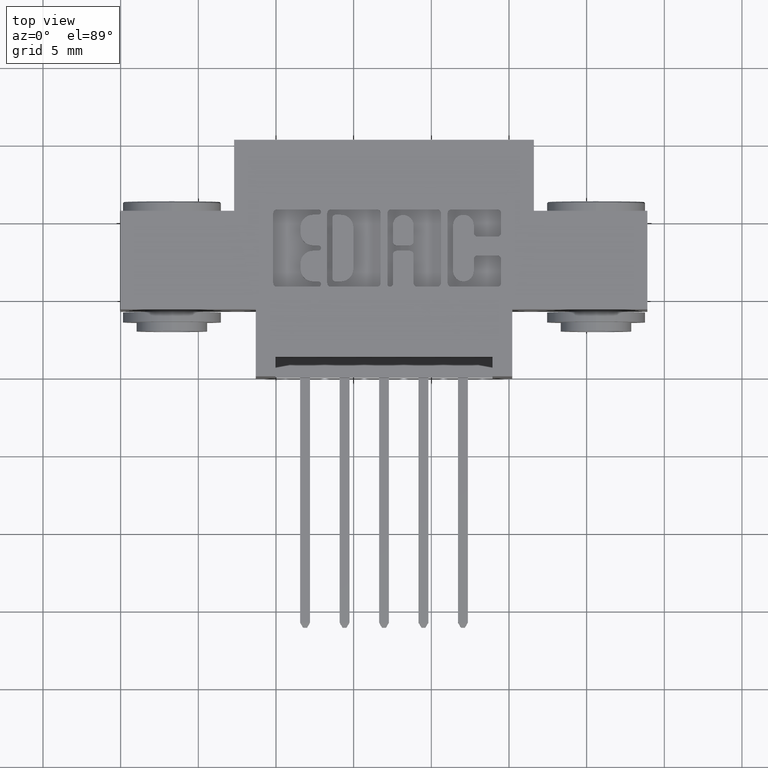
[diagram: clean part render]
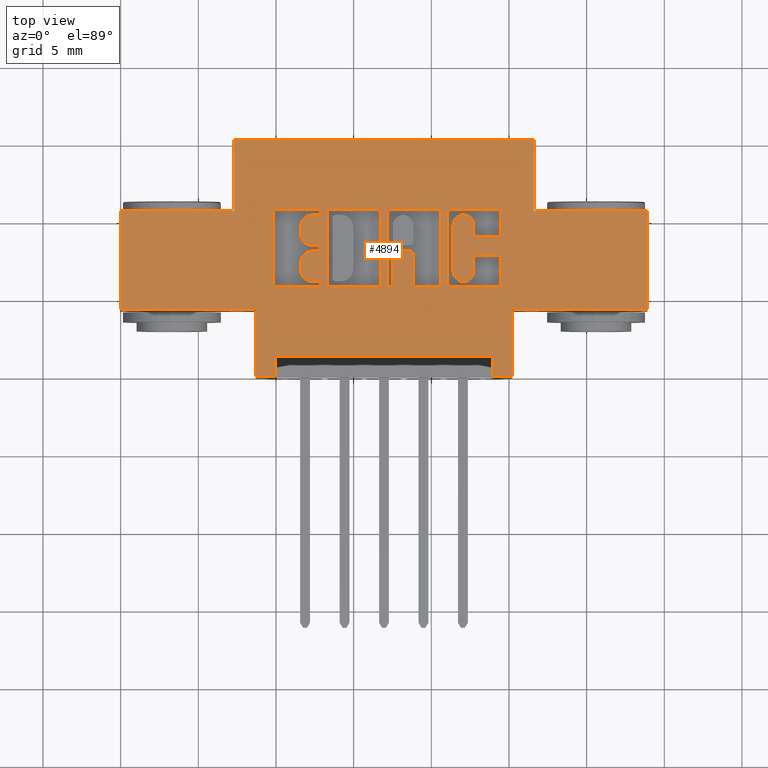
[diagram: same view with one face highlighted and labeled with its STEP entity id]
A machine part, top view. The second image highlights one B-rep face of the part: STEP entity #4894.
In plain terms, the highlighted planar face has unit normal (0, 0, -1).
Its self-contained STEP definition (entity closure, byte-faithful):
#12 = CARTESIAN_POINT ( 'NONE',  ( 0.7423444853039845600, 0.2366589681657872400, 0.0000000000000000000 ) ) ;
#20 = LINE ( 'NONE', #8558, #9373 ) ;
#39 = VECTOR ( 'NONE', #1196, 39.37007874015748100 ) ;
#54 = DIRECTION ( 'NONE',  ( 1.000000000000000000, 0.0000000000000000000, 0.0000000000000000000 ) ) ;
#78 = VECTOR ( 'NONE', #6626, 39.37007874015748100 ) ;
#84 = LINE ( 'NONE', #9011, #215 ) ;
#93 = CARTESIAN_POINT ( 'NONE',  ( 0.5075045756779733600, 0.3250000000000197700, 0.0000000000000000000 ) ) ;
#122 = LINE ( 'NONE', #5308, #9248 ) ;
#138 = CARTESIAN_POINT ( 'NONE',  ( 0.9641786319099718800, 0.4133410318341942400, 0.0000000000000000000 ) ) ;
#141 = EDGE_CURVE ( 'NONE', #4767, #5521, #4703, .T. ) ;
#155 = ORIENTED_EDGE ( 'NONE', *, *, #6849, .F. ) ;
#177 = ORIENTED_EDGE ( 'NONE', *, *, #8965, .T. ) ;
#193 = DIRECTION ( 'NONE',  ( -0.0000000000000000000, 0.0000000000000000000, 1.000000000000000000 ) ) ;
#215 = VECTOR ( 'NONE', #7019, 39.37007874015748100 ) ;
#226 = VERTEX_POINT ( 'NONE', #2705 ) ;
#261 = DIRECTION ( 'NONE',  ( 1.000000000000000000, 0.0000000000000000000, 0.0000000000000000000 ) ) ;
#264 = ORIENTED_EDGE ( 'NONE', *, *, #3347, .T. ) ;
#268 = EDGE_CURVE ( 'NONE', #556, #7973, #5226, .T. ) ;
#282 = VERTEX_POINT ( 'NONE', #6229 ) ;
#284 = ORIENTED_EDGE ( 'NONE', *, *, #268, .F. ) ;
#299 = DIRECTION ( 'NONE',  ( 1.000000000000000000, 0.0000000000000000000, 0.0000000000000000000 ) ) ;
#310 = ORIENTED_EDGE ( 'NONE', *, *, #8374, .F. ) ;
#320 = DIRECTION ( 'NONE',  ( -1.000000000000000000, 0.0000000000000000000, 0.0000000000000000000 ) ) ;
#331 = DIRECTION ( 'NONE',  ( 1.000000000000000000, 0.0000000000000000000, 0.0000000000000000000 ) ) ;
#340 = CIRCLE ( 'NONE', #7674, 0.006870969142663527000 ) ;
#352 = ORIENTED_EDGE ( 'NONE', *, *, #8864, .F. ) ;
#376 = EDGE_CURVE ( 'NONE', #5810, #7629, #9041, .T. ) ;
#377 = DIRECTION ( 'NONE',  ( -0.0000000000000000000, 0.0000000000000000000, 1.000000000000000000 ) ) ;
#404 = DIRECTION ( 'NONE',  ( -0.0000000000000000000, -1.000000000000000000, -0.0000000000000000000 ) ) ;
#417 = CARTESIAN_POINT ( 'NONE',  ( 0.9047938271769772100, 0.3637718973050446100, 0.0000000000000000000 ) ) ;
#419 = CARTESIAN_POINT ( 'NONE',  ( 0.5006336065353511600, 0.4162857328953856700, 0.0000000000000000000 ) ) ;
#421 = CARTESIAN_POINT ( 'NONE',  ( 0.7521601555077854800, 0.2268432979619840200, 0.0000000000000000000 ) ) ;
#441 = CARTESIAN_POINT ( 'NONE',  ( 0.0000000000000000000, 0.4231567020380504500, 0.0000000000000000000 ) ) ;
#463 = EDGE_CURVE ( 'NONE', #4244, #6948, #4778, .T. ) ;
#468 = VECTOR ( 'NONE', #6067, 39.37007874015748100 ) ;
#497 = VERTEX_POINT ( 'NONE', #6146 ) ;
#500 = DIRECTION ( 'NONE',  ( -1.000000000000000000, 0.0000000000000000000, 0.0000000000000000000 ) ) ;
#505 = LINE ( 'NONE', #1623, #3415 ) ;
#509 = VERTEX_POINT ( 'NONE', #1102 ) ;
#517 = CARTESIAN_POINT ( 'NONE',  ( 0.4871370600050838300, 0.3318709691426832700, 0.0000000000000000000 ) ) ;
#523 = EDGE_CURVE ( 'NONE', #2761, #732, #2120, .T. ) ;
#525 = ORIENTED_EDGE ( 'NONE', *, *, #376, .F. ) ;
#556 = VERTEX_POINT ( 'NONE', #1843 ) ;
#576 = VECTOR ( 'NONE', #3508, 39.37007874015748100 ) ;
#590 = VERTEX_POINT ( 'NONE', #1395 ) ;
#608 = DIRECTION ( 'NONE',  ( 1.000000000000000000, 0.0000000000000000000, 0.0000000000000000000 ) ) ;
#611 = ORIENTED_EDGE ( 'NONE', *, *, #3364, .F. ) ;
#623 = EDGE_CURVE ( 'NONE', #732, #3067, #4084, .T. ) ;
#625 = ORIENTED_EDGE ( 'NONE', *, *, #7071, .T. ) ;
#626 = CARTESIAN_POINT ( 'NONE',  ( 0.8115449602408065800, 0.2366589681657802800, 0.0000000000000000000 ) ) ;
#629 = CARTESIAN_POINT ( 'NONE',  ( 0.8424643213828182400, 0.3831578459575290000, 0.0000000000000000000 ) ) ;
#633 = ORIENTED_EDGE ( 'NONE', *, *, #5729, .T. ) ;
#639 = LINE ( 'NONE', #1100, #5940 ) ;
#645 = VERTEX_POINT ( 'NONE', #93 ) ;
#688 = ORIENTED_EDGE ( 'NONE', *, *, #6743, .F. ) ;
#690 = LINE ( 'NONE', #5330, #468 ) ;
#694 = AXIS2_PLACEMENT_3D ( 'NONE', #7670, #4847, #331 ) ;
#709 = CARTESIAN_POINT ( 'NONE',  ( 0.3924999999999996800, 0.05000000000000000300, 0.0000000000000000000 ) ) ;
#711 = DIRECTION ( 'NONE',  ( -0.0000000000000000000, 0.0000000000000000000, 1.000000000000000000 ) ) ;
#713 = AXIS2_PLACEMENT_3D ( 'NONE', #7745, #8539, #4809 ) ;
#726 = CARTESIAN_POINT ( 'NONE',  ( -0.0000000000000000000, 0.4094147637527351100, 0.0000000000000000000 ) ) ;
#732 = VERTEX_POINT ( 'NONE', #4512 ) ;
#751 = DIRECTION ( 'NONE',  ( -0.0000000000000000000, 0.0000000000000000000, 1.000000000000000000 ) ) ;
#760 = LINE ( 'NONE', #4267, #6416 ) ;
#763 = ORIENTED_EDGE ( 'NONE', *, *, #5399, .T. ) ;
#814 = CARTESIAN_POINT ( 'NONE',  ( 0.5332707099629758800, 0.2366589681657893500, 0.0000000000000000000 ) ) ;
#817 = ORIENTED_EDGE ( 'NONE', *, *, #884, .F. ) ;
#839 = DIRECTION ( 'NONE',  ( -1.000000000000000000, -0.0000000000000000000, -0.0000000000000000000 ) ) ;
#884 = EDGE_CURVE ( 'NONE', #6684, #1859, #2700, .T. ) ;
#893 = ORIENTED_EDGE ( 'NONE', *, *, #6922, .T. ) ;
#900 = EDGE_CURVE ( 'NONE', #8360, #4924, #1426, .T. ) ;
#911 = EDGE_CURVE ( 'NONE', #4767, #4860, #1538, .T. ) ;
#917 = DIRECTION ( 'NONE',  ( 0.0000000000000000000, -1.000000000000000000, 0.0000000000000000000 ) ) ;
#924 = VERTEX_POINT ( 'NONE', #626 ) ;
#938 = VERTEX_POINT ( 'NONE', #3798 ) ;
#943 = ORIENTED_EDGE ( 'NONE', *, *, #4980, .F. ) ;
#972 = CARTESIAN_POINT ( 'NONE',  ( 1.047500000000000300, 0.4199999999999999800, 0.0000000000000000000 ) ) ;
#1012 = CARTESIAN_POINT ( 'NONE',  ( 0.7325288151001876400, 0.3083133606535521900, 0.0000000000000000000 ) ) ;
#1016 = ORIENTED_EDGE ( 'NONE', *, *, #463, .T. ) ;
#1034 = AXIS2_PLACEMENT_3D ( 'NONE', #8726, #1310, #1370 ) ;
#1035 = VERTEX_POINT ( 'NONE', #6644 ) ;
#1047 = VECTOR ( 'NONE', #1980, 39.37007874015748100 ) ;
#1051 = ORIENTED_EDGE ( 'NONE', *, *, #9145, .F. ) ;
#1074 = ORIENTED_EDGE ( 'NONE', *, *, #1580, .F. ) ;
#1087 = ORIENTED_EDGE ( 'NONE', *, *, #7208, .F. ) ;
#1100 = CARTESIAN_POINT ( 'NONE',  ( -0.0000000000000000000, 0.3539562271012330300, 0.0000000000000000000 ) ) ;
#1102 = CARTESIAN_POINT ( 'NONE',  ( 0.5006336064153886800, 0.3181290308573562200, 0.0000000000000000000 ) ) ;
#1116 = CARTESIAN_POINT ( 'NONE',  ( 0.8687212391779985900, 0.2668421540424524300, 0.0000000000000000000 ) ) ;
#1154 = DIRECTION ( 'NONE',  ( -0.0000000000000000000, 0.0000000000000000000, 1.000000000000000000 ) ) ;
#1155 = ORIENTED_EDGE ( 'NONE', *, *, #1803, .T. ) ;
#1158 = VECTOR ( 'NONE', #839, 39.37007874015748100 ) ;
#1166 = CARTESIAN_POINT ( 'NONE',  ( 0.5006336065353511600, 0.4162857328953856700, 0.0000000000000000000 ) ) ;
#1196 = DIRECTION ( 'NONE',  ( -1.000000000000000000, -1.189163988687022500E-013, 0.0000000000000000000 ) ) ;
#1212 = AXIS2_PLACEMENT_3D ( 'NONE', #4002, #377, #9166 ) ;
#1237 = CARTESIAN_POINT ( 'NONE',  ( 0.6996463199174500800, 0.3083133606535449800, 0.0000000000000000000 ) ) ;
#1282 = LINE ( 'NONE', #4449, #8074 ) ;
#1305 = CARTESIAN_POINT ( 'NONE',  ( 0.5006336065353354000, 0.2337142671046473500, 0.0000000000000000000 ) ) ;
#1310 = DIRECTION ( 'NONE',  ( 0.0000000000000000000, 0.0000000000000000000, -1.000000000000000000 ) ) ;
#1327 = EDGE_CURVE ( 'NONE', #9287, #8672, #8215, .T. ) ;
#1331 = VERTEX_POINT ( 'NONE', #5681 ) ;
#1333 = VERTEX_POINT ( 'NONE', #5547 ) ;
#1336 = DIRECTION ( 'NONE',  ( 1.000000000000000000, 0.0000000000000000000, 0.0000000000000000000 ) ) ;
#1340 = VERTEX_POINT ( 'NONE', #8543 ) ;
#1347 = VECTOR ( 'NONE', #2300, 39.37007874015748100 ) ;
#1366 = DIRECTION ( 'NONE',  ( -0.0000000000000000000, 0.0000000000000000000, 1.000000000000000000 ) ) ;
#1370 = DIRECTION ( 'NONE',  ( -1.000000000000000000, 0.0000000000000000000, -0.0000000000000000000 ) ) ;
#1376 = CARTESIAN_POINT ( 'NONE',  ( 0.3865264404161152800, 0.4133410318342095000, 0.0000000000000000000 ) ) ;
#1395 = CARTESIAN_POINT ( 'NONE',  ( 0.3424999999999999700, 0.1699999999999999800, 0.0000000000000000000 ) ) ;
#1403 = DIRECTION ( 'NONE',  ( 1.000000000000000000, 0.0000000000000000000, 0.0000000000000000000 ) ) ;
#1404 = EDGE_CURVE ( 'NONE', #509, #645, #6240, .T. ) ;
#1411 = VERTEX_POINT ( 'NONE', #517 ) ;
#1415 = AXIS2_PLACEMENT_3D ( 'NONE', #7719, #7679, #4665 ) ;
#1423 = EDGE_CURVE ( 'NONE', #3574, #5810, #7284, .T. ) ;
#1426 = LINE ( 'NONE', #4921, #6364 ) ;
#1432 = CARTESIAN_POINT ( 'NONE',  ( 0.8287223830974583800, 0.0000000000000000000, 0.0000000000000000000 ) ) ;
#1469 = VERTEX_POINT ( 'NONE', #4288 ) ;
#1527 = CARTESIAN_POINT ( 'NONE',  ( -0.0000000000000000000, 0.2268432979619826000, 0.0000000000000000000 ) ) ;
#1536 = EDGE_CURVE ( 'NONE', #4677, #2761, #5779, .T. ) ;
#1538 = CIRCLE ( 'NONE', #5254, 0.03141014465218178200 ) ;
#1551 = CARTESIAN_POINT ( 'NONE',  ( 0.6859043816321273000, 0.4231567020380060400, 0.0000000000000000000 ) ) ;
#1557 = DIRECTION ( 'NONE',  ( -0.0000000000000000000, 0.0000000000000000000, 1.000000000000000000 ) ) ;
#1574 = VECTOR ( 'NONE', #1687, 39.37007874015748100 ) ;
#1580 = EDGE_CURVE ( 'NONE', #2688, #4677, #2804, .T. ) ;
#1596 = CIRCLE ( 'NONE', #8462, 0.009815670203803340800 ) ;
#1599 = VERTEX_POINT ( 'NONE', #5791 ) ;
#1621 = CIRCLE ( 'NONE', #2569, 0.009815670203806891800 ) ;
#1623 = CARTESIAN_POINT ( 'NONE',  ( 0.0000000000000000000, 0.4231567020380321300, 0.0000000000000000000 ) ) ;
#1635 = DIRECTION ( 'NONE',  ( -0.0000000000000000000, -1.000000000000000000, -0.0000000000000000000 ) ) ;
#1642 = EDGE_CURVE ( 'NONE', #3487, #5929, #3262, .T. ) ;
#1668 = CARTESIAN_POINT ( 'NONE',  ( 0.6490956183678959800, 0.4231567020380504500, 0.0000000000000000000 ) ) ;
#1673 = ORIENTED_EDGE ( 'NONE', *, *, #7755, .T. ) ;
#1684 = CARTESIAN_POINT ( 'NONE',  ( 0.0000000000000000000, 0.5999999999999999800, 0.0000000000000000000 ) ) ;
#1687 = DIRECTION ( 'NONE',  ( -1.000000000000000000, -3.530861605407645300E-014, 0.0000000000000000000 ) ) ;
#1707 = VECTOR ( 'NONE', #3382, 39.37007874015748100 ) ;
#1711 = CARTESIAN_POINT ( 'NONE',  ( 1.334999999999999700, 0.1699999999999999800, 1.634903476861716200E-016 ) ) ;
#1717 = CIRCLE ( 'NONE', #4361, 0.006870969142648501700 ) ;
#1738 = CARTESIAN_POINT ( 'NONE',  ( 0.8385380533012651800, 0.2366589681657893500, 0.0000000000000000000 ) ) ;
#1742 = CIRCLE ( 'NONE', #6571, 0.009815670203787086500 ) ;
#1744 = ORIENTED_EDGE ( 'NONE', *, *, #1536, .F. ) ;
#1758 = VECTOR ( 'NONE', #3300, 39.37007874015748100 ) ;
#1770 = DIRECTION ( 'NONE',  ( 1.000000000000000000, 0.0000000000000000000, 0.0000000000000000000 ) ) ;
#1803 = EDGE_CURVE ( 'NONE', #4924, #7468, #690, .T. ) ;
#1843 = CARTESIAN_POINT ( 'NONE',  ( 0.3865264404161152800, 0.2366589681657893500, 0.0000000000000000000 ) ) ;
#1844 = CARTESIAN_POINT ( 'NONE',  ( 0.9425000000000001200, 0.0000000000000000000, 0.0000000000000000000 ) ) ;
#1846 = EDGE_CURVE ( 'NONE', #2681, #1599, #8084, .T. ) ;
#1854 = CARTESIAN_POINT ( 'NONE',  ( 0.3865264404161152800, 0.0000000000000000000, 0.0000000000000000000 ) ) ;
#1855 = LINE ( 'NONE', #3599, #1158 ) ;
#1859 = VERTEX_POINT ( 'NONE', #5603 ) ;
#1885 = CARTESIAN_POINT ( 'NONE',  ( 0.9543629617061681900, 0.4231567020380504500, 0.0000000000000000000 ) ) ;
#1887 = DIRECTION ( 'NONE',  ( 1.000000000000000000, 0.0000000000000000000, 0.0000000000000000000 ) ) ;
#1892 = VERTEX_POINT ( 'NONE', #3476 ) ;
#1893 = CARTESIAN_POINT ( 'NONE',  ( 0.6490956183678618900, 0.2366589681657893500, 0.0000000000000000000 ) ) ;
#1911 = CARTESIAN_POINT ( 'NONE',  ( 0.9543629617061669700, 0.3539562271012330300, 0.0000000000000000000 ) ) ;
#1916 = ORIENTED_EDGE ( 'NONE', *, *, #4005, .F. ) ;
#1946 = DIRECTION ( 'NONE',  ( 1.000000000000000000, 0.0000000000000000000, 0.0000000000000000000 ) ) ;
#1959 = EDGE_CURVE ( 'NONE', #6138, #2454, #7268, .T. ) ;
#1960 = CIRCLE ( 'NONE', #6152, 0.006870969142648501700 ) ;
#1970 = DIRECTION ( 'NONE',  ( -0.0000000000000000000, 1.000000000000000000, -0.0000000000000000000 ) ) ;
#1980 = DIRECTION ( 'NONE',  ( 1.000000000000000000, 0.0000000000000000000, 0.0000000000000000000 ) ) ;
#1995 = VERTEX_POINT ( 'NONE', #7206 ) ;
#2007 = DIRECTION ( 'NONE',  ( 1.000000000000000000, 0.0000000000000000000, 0.0000000000000000000 ) ) ;
#2011 = CARTESIAN_POINT ( 'NONE',  ( 0.5006336065353097500, 0.3250000000000197700, 0.0000000000000000000 ) ) ;
#2018 = ORIENTED_EDGE ( 'NONE', *, *, #2670, .F. ) ;
#2025 = VERTEX_POINT ( 'NONE', #7689 ) ;
#2034 = CARTESIAN_POINT ( 'NONE',  ( 0.2874999999999999800, 0.4199999999999999800, 0.0000000000000000000 ) ) ;
#2064 = DIRECTION ( 'NONE',  ( 1.000000000000000000, 7.203446383881649800E-015, 0.0000000000000000000 ) ) ;
#2071 = ORIENTED_EDGE ( 'NONE', *, *, #141, .F. ) ;
#2110 = LINE ( 'NONE', #6651, #2707 ) ;
#2120 = CIRCLE ( 'NONE', #8107, 0.009815670203806754800 ) ;
#2129 = DIRECTION ( 'NONE',  ( 1.000000000000000000, 0.0000000000000000000, 0.0000000000000000000 ) ) ;
#2131 = VERTEX_POINT ( 'NONE', #8089 ) ;
#2134 = EDGE_CURVE ( 'NONE', #9258, #8372, #4174, .T. ) ;
#2145 = CARTESIAN_POINT ( 'NONE',  ( 0.4871370600051252400, 0.3780046191005191900, 0.0000000000000000000 ) ) ;
#2153 = CIRCLE ( 'NONE', #713, 0.03141014465217447500 ) ;
#2162 = CARTESIAN_POINT ( 'NONE',  ( 0.8287223830974583800, 0.2366589681657893500, 0.0000000000000000000 ) ) ;
#2239 = CIRCLE ( 'NONE', #6590, 0.006870969142657995000 ) ;
#2248 = EDGE_CURVE ( 'NONE', #7081, #2688, #4265, .T. ) ;
#2282 = ORIENTED_EDGE ( 'NONE', *, *, #3514, .F. ) ;
#2300 = DIRECTION ( 'NONE',  ( 0.0000000000000000000, -1.000000000000000000, 0.0000000000000000000 ) ) ;
#2313 = VERTEX_POINT ( 'NONE', #8443 ) ;
#2349 = CARTESIAN_POINT ( 'NONE',  ( 1.334999999999999700, 0.4199999999999999800, 0.0000000000000000000 ) ) ;
#2352 = EDGE_CURVE ( 'NONE', #645, #2313, #340, .T. ) ;
#2360 = VECTOR ( 'NONE', #5835, 39.37007874015748100 ) ;
#2362 = DIRECTION ( 'NONE',  ( 0.0000000000000000000, 1.000000000000000000, -0.0000000000000000000 ) ) ;
#2397 = DIRECTION ( 'NONE',  ( 0.0000000000000000000, 1.000000000000000000, -0.0000000000000000000 ) ) ;
#2400 = LINE ( 'NONE', #1854, #8526 ) ;
#2429 = CIRCLE ( 'NONE', #4547, 0.03141014465215624000 ) ;
#2451 = AXIS2_PLACEMENT_3D ( 'NONE', #2145, #8105, #6519 ) ;
#2454 = VERTEX_POINT ( 'NONE', #3225 ) ;
#2457 = CARTESIAN_POINT ( 'NONE',  ( 0.4557269153529276400, 0.2719953808994897700, 0.0000000000000000000 ) ) ;
#2497 = EDGE_CURVE ( 'NONE', #1035, #6655, #1282, .T. ) ;
#2500 = DIRECTION ( 'NONE',  ( -0.0000000000000000000, 0.0000000000000000000, 1.000000000000000000 ) ) ;
#2558 = VERTEX_POINT ( 'NONE', #3681 ) ;
#2565 = CIRCLE ( 'NONE', #1212, 0.009815670203796511200 ) ;
#2569 = AXIS2_PLACEMENT_3D ( 'NONE', #1893, #5580, #8094 ) ;
#2593 = ORIENTED_EDGE ( 'NONE', *, *, #6374, .F. ) ;
#2597 = VECTOR ( 'NONE', #2362, 39.37007874015748100 ) ;
#2598 = VECTOR ( 'NONE', #4035, 39.37007874015748100 ) ;
#2608 = DIRECTION ( 'NONE',  ( 1.000000000000000000, 0.0000000000000000000, 0.0000000000000000000 ) ) ;
#2629 = EDGE_CURVE ( 'NONE', #2454, #3487, #1621, .T. ) ;
#2636 = VERTEX_POINT ( 'NONE', #3142 ) ;
#2665 = CARTESIAN_POINT ( 'NONE',  ( 0.8949781569731788400, 0.0000000000000000000, 0.0000000000000000000 ) ) ;
#2670 = EDGE_CURVE ( 'NONE', #8138, #2131, #3236, .T. ) ;
#2681 = VERTEX_POINT ( 'NONE', #7914 ) ;
#2688 = VERTEX_POINT ( 'NONE', #3534 ) ;
#2700 = LINE ( 'NONE', #441, #1758 ) ;
#2701 = AXIS2_PLACEMENT_3D ( 'NONE', #3498, #5025, #608 ) ;
#2705 = CARTESIAN_POINT ( 'NONE',  ( 0.3963421106199378500, 0.4231567020380321300, 0.0000000000000000000 ) ) ;
#2707 = VECTOR ( 'NONE', #3707, 39.37007874015748100 ) ;
#2714 = CARTESIAN_POINT ( 'NONE',  ( 0.0000000000000000000, 0.5999999999999999800, 0.0000000000000000000 ) ) ;
#2761 = VERTEX_POINT ( 'NONE', #2162 ) ;
#2790 = EDGE_CURVE ( 'NONE', #590, #1469, #1855, .T. ) ;
#2795 = CARTESIAN_POINT ( 'NONE',  ( 0.3963421106199378500, 0.4133410318342095000, 0.0000000000000000000 ) ) ;
#2804 = CIRCLE ( 'NONE', #6942, 0.009815670203840767500 ) ;
#2806 = CARTESIAN_POINT ( 'NONE',  ( 0.8949781569731657400, 0.0000000000000000000, 0.0000000000000000000 ) ) ;
#2813 = ORIENTED_EDGE ( 'NONE', *, *, #900, .T. ) ;
#2814 = CARTESIAN_POINT ( 'NONE',  ( 0.6898306497136467200, 0.0000000000000000000, 0.0000000000000000000 ) ) ;
#2832 = EDGE_CURVE ( 'NONE', #4886, #7105, #9348, .T. ) ;
#2838 = VERTEX_POINT ( 'NONE', #5450 ) ;
#2853 = AXIS2_PLACEMENT_3D ( 'NONE', #2795, #8605, #2007 ) ;
#2922 = ORIENTED_EDGE ( 'NONE', *, *, #8754, .F. ) ;
#2924 = CARTESIAN_POINT ( 'NONE',  ( 0.9641786319099718800, 0.0000000000000000000, 0.0000000000000000000 ) ) ;
#2959 = AXIS2_PLACEMENT_3D ( 'NONE', #417, #7068, #3337 ) ;
#2961 = VERTEX_POINT ( 'NONE', #7011 ) ;
#2968 = LINE ( 'NONE', #6056, #8625 ) ;
#3005 = CARTESIAN_POINT ( 'NONE',  ( 0.6589112885716688100, 0.4133410318342095000, 0.0000000000000000000 ) ) ;
#3021 = AXIS2_PLACEMENT_3D ( 'NONE', #7607, #4683, #261 ) ;
#3024 = ORIENTED_EDGE ( 'NONE', *, *, #1642, .F. ) ;
#3028 = CARTESIAN_POINT ( 'NONE',  ( 0.4557269153529276400, 0.2867188862051999700, 0.0000000000000000000 ) ) ;
#3033 = EDGE_CURVE ( 'NONE', #2313, #1411, #4207, .T. ) ;
#3067 = VERTEX_POINT ( 'NONE', #7585 ) ;
#3120 = FACE_BOUND ( 'NONE', #6294, .T. ) ;
#3142 = CARTESIAN_POINT ( 'NONE',  ( 0.8424643213828182400, 0.2668421540424524300, 0.0000000000000000000 ) ) ;
#3148 = CARTESIAN_POINT ( 'NONE',  ( 0.5006336065353511600, 0.4094147637527351100, 0.0000000000000000000 ) ) ;
#3150 = CARTESIAN_POINT ( 'NONE',  ( -1.123269580619666900E-014, 0.3181290308573233000, 0.0000000000000000000 ) ) ;
#3196 = VERTEX_POINT ( 'NONE', #6704 ) ;
#3213 = AXIS2_PLACEMENT_3D ( 'NONE', #1305, #6436, #1336 ) ;
#3225 = CARTESIAN_POINT ( 'NONE',  ( 0.6490956183678618900, 0.2268432979619826000, 0.0000000000000000000 ) ) ;
#3236 = CIRCLE ( 'NONE', #2701, 0.006870969142662229500 ) ;
#3245 = CARTESIAN_POINT ( 'NONE',  ( 0.6589112885716688100, 0.2366589681657893500, 0.0000000000000000000 ) ) ;
#3262 = LINE ( 'NONE', #7157, #8206 ) ;
#3270 = ORIENTED_EDGE ( 'NONE', *, *, #2352, .F. ) ;
#3278 = EDGE_CURVE ( 'NONE', #497, #1469, #7314, .T. ) ;
#3291 = EDGE_CURVE ( 'NONE', #1340, #3721, #5685, .T. ) ;
#3296 = ORIENTED_EDGE ( 'NONE', *, *, #3766, .F. ) ;
#3300 = DIRECTION ( 'NONE',  ( -1.000000000000000000, 0.0000000000000000000, 0.0000000000000000000 ) ) ;
#3317 = CARTESIAN_POINT ( 'NONE',  ( 0.7423444853039845600, 0.0000000000000000000, 0.0000000000000000000 ) ) ;
#3323 = EDGE_LOOP ( 'NONE', ( #4859, #3296, #625, #6901, #3270, #4216, #4042, #4510, #2071, #6211, #4415, #8339, #2018, #6890, #284, #9545, #9406, #4462, #943, #8369, #9514 ) ) ;
#3337 = DIRECTION ( 'NONE',  ( 1.000000000000000000, 0.0000000000000000000, 0.0000000000000000000 ) ) ;
#3347 = EDGE_CURVE ( 'NONE', #5876, #1340, #8815, .T. ) ;
#3359 = CARTESIAN_POINT ( 'NONE',  ( 0.8115449602408065800, 0.4133410318342003500, 0.0000000000000000000 ) ) ;
#3362 = DIRECTION ( 'NONE',  ( 1.000000000000000000, 0.0000000000000000000, 0.0000000000000000000 ) ) ;
#3364 = EDGE_CURVE ( 'NONE', #497, #7298, #7767, .T. ) ;
#3382 = DIRECTION ( 'NONE',  ( 0.0000000000000000000, 1.000000000000000000, -0.0000000000000000000 ) ) ;
#3415 = VECTOR ( 'NONE', #6531, 39.37007874015748100 ) ;
#3450 = DIRECTION ( 'NONE',  ( -0.0000000000000000000, -1.000000000000000000, -0.0000000000000000000 ) ) ;
#3464 = CARTESIAN_POINT ( 'NONE',  ( 0.0000000000000000000, 0.4199999999999999800, 0.0000000000000000000 ) ) ;
#3473 = EDGE_CURVE ( 'NONE', #5929, #6684, #8453, .T. ) ;
#3474 = VECTOR ( 'NONE', #500, 39.37007874015748100 ) ;
#3476 = CARTESIAN_POINT ( 'NONE',  ( 0.3924999999999996800, 0.0000000000000000000, 0.0000000000000000000 ) ) ;
#3485 = EDGE_CURVE ( 'NONE', #5540, #1892, #5999, .T. ) ;
#3487 = VERTEX_POINT ( 'NONE', #3245 ) ;
#3489 = AXIS2_PLACEMENT_3D ( 'NONE', #5619, #9304, #1887 ) ;
#3498 = CARTESIAN_POINT ( 'NONE',  ( 0.5006336065353354000, 0.2337142671046473500, 0.0000000000000000000 ) ) ;
#3501 = AXIS2_PLACEMENT_3D ( 'NONE', #1237, #9389, #9330 ) ;
#3508 = DIRECTION ( 'NONE',  ( 1.000000000000000000, 0.0000000000000000000, 0.0000000000000000000 ) ) ;
#3514 = EDGE_CURVE ( 'NONE', #5984, #6948, #2565, .T. ) ;
#3534 = CARTESIAN_POINT ( 'NONE',  ( 0.8385380533012991600, 0.4231567020380504500, 0.0000000000000000000 ) ) ;
#3537 = LINE ( 'NONE', #3150, #1574 ) ;
#3574 = VERTEX_POINT ( 'NONE', #1911 ) ;
#3580 = VECTOR ( 'NONE', #5931, 39.37007874015748100 ) ;
#3599 = CARTESIAN_POINT ( 'NONE',  ( 0.0000000000000000000, 0.1699999999999999800, 0.0000000000000000000 ) ) ;
#3600 = CARTESIAN_POINT ( 'NONE',  ( 0.9543629617061528700, 0.2965345564089698100, 0.0000000000000000000 ) ) ;
#3604 = LINE ( 'NONE', #4102, #8801 ) ;
#3649 = DIRECTION ( 'NONE',  ( 0.0000000000000000000, -1.000000000000000000, 0.0000000000000000000 ) ) ;
#3669 = LINE ( 'NONE', #3317, #1707 ) ;
#3677 = ORIENTED_EDGE ( 'NONE', *, *, #4926, .F. ) ;
#3681 = CARTESIAN_POINT ( 'NONE',  ( 0.9924999999999998300, 0.1699999999999999800, 7.960204194457794200E-017 ) ) ;
#3682 = FACE_BOUND ( 'NONE', #9332, .T. ) ;
#3707 = DIRECTION ( 'NONE',  ( -1.000000000000000000, 0.0000000000000000000, 0.0000000000000000000 ) ) ;
#3721 = VERTEX_POINT ( 'NONE', #5208 ) ;
#3748 = DIRECTION ( 'NONE',  ( 1.000000000000000000, 0.0000000000000000000, 0.0000000000000000000 ) ) ;
#3752 = VERTEX_POINT ( 'NONE', #8393 ) ;
#3766 = EDGE_CURVE ( 'NONE', #1333, #1331, #122, .T. ) ;
#3770 = ORIENTED_EDGE ( 'NONE', *, *, #3278, .T. ) ;
#3774 = ORIENTED_EDGE ( 'NONE', *, *, #4315, .T. ) ;
#3791 = EDGE_CURVE ( 'NONE', #5204, #8210, #1742, .T. ) ;
#3798 = CARTESIAN_POINT ( 'NONE',  ( 0.7325288151001879700, 0.3181290308573491700, 0.0000000000000000000 ) ) ;
#3815 = CARTESIAN_POINT ( 'NONE',  ( 0.9425000000000001200, 0.05000000000000000300, 0.0000000000000000000 ) ) ;
#3831 = EDGE_CURVE ( 'NONE', #9258, #1331, #5187, .T. ) ;
#3937 = CARTESIAN_POINT ( 'NONE',  ( 0.9641786319099399100, 0.0000000000000000000, 0.0000000000000000000 ) ) ;
#3971 = VECTOR ( 'NONE', #7066, 39.37007874015748100 ) ;
#3986 = DIRECTION ( 'NONE',  ( -1.000000000000000000, 0.0000000000000000000, 0.0000000000000000000 ) ) ;
#4002 = CARTESIAN_POINT ( 'NONE',  ( 0.6859043816321273000, 0.4133410318342095000, 0.0000000000000000000 ) ) ;
#4005 = EDGE_CURVE ( 'NONE', #2025, #2961, #4969, .T. ) ;
#4030 = ORIENTED_EDGE ( 'NONE', *, *, #8448, .F. ) ;
#4032 = CARTESIAN_POINT ( 'NONE',  ( 0.9924999999999998300, 0.0000000000000000000, 0.0000000000000000000 ) ) ;
#4035 = DIRECTION ( 'NONE',  ( 0.0000000000000000000, 1.000000000000000000, -0.0000000000000000000 ) ) ;
#4042 = ORIENTED_EDGE ( 'NONE', *, *, #7829, .F. ) ;
#4063 = VECTOR ( 'NONE', #5468, 39.37007874015748100 ) ;
#4084 = LINE ( 'NONE', #1527, #7531 ) ;
#4102 = CARTESIAN_POINT ( 'NONE',  ( 0.2874999999999999800, 0.4199999999999999800, 0.0000000000000000000 ) ) ;
#4144 = DIRECTION ( 'NONE',  ( -0.0000000000000000000, 0.0000000000000000000, 1.000000000000000000 ) ) ;
#4173 = CARTESIAN_POINT ( 'NONE',  ( 1.334999999999999700, 0.1699999999999999800, 1.634903476861716200E-016 ) ) ;
#4174 = LINE ( 'NONE', #726, #5662 ) ;
#4179 = CARTESIAN_POINT ( 'NONE',  ( 0.0000000000000000000, 0.3318709691426832700, 0.0000000000000000000 ) ) ;
#4207 = LINE ( 'NONE', #4179, #4670 ) ;
#4216 = ORIENTED_EDGE ( 'NONE', *, *, #1404, .F. ) ;
#4242 = AXIS2_PLACEMENT_3D ( 'NONE', #8024, #1366, #2129 ) ;
#4244 = VERTEX_POINT ( 'NONE', #6377 ) ;
#4265 = LINE ( 'NONE', #8645, #3474 ) ;
#4267 = CARTESIAN_POINT ( 'NONE',  ( -0.0000000000000000000, 0.4231567020380060400, 0.0000000000000000000 ) ) ;
#4288 = CARTESIAN_POINT ( 'NONE',  ( 0.0000000000000000000, 0.1699999999999999800, 0.0000000000000000000 ) ) ;
#4290 = EDGE_CURVE ( 'NONE', #4886, #924, #8076, .T. ) ;
#4315 = EDGE_CURVE ( 'NONE', #282, #938, #5868, .T. ) ;
#4340 = CIRCLE ( 'NONE', #3213, 0.006870969142662229500 ) ;
#4361 = AXIS2_PLACEMENT_3D ( 'NONE', #419, #6312, #7740 ) ;
#4372 = DIRECTION ( 'NONE',  ( -0.0000000000000000000, 0.0000000000000000000, 1.000000000000000000 ) ) ;
#4381 = DIRECTION ( 'NONE',  ( 1.000000000000000000, -0.0000000000000000000, -0.0000000000000000000 ) ) ;
#4386 = VERTEX_POINT ( 'NONE', #8911 ) ;
#4394 = DIRECTION ( 'NONE',  ( -0.0000000000000000000, 0.0000000000000000000, 1.000000000000000000 ) ) ;
#4403 = VECTOR ( 'NONE', #3649, 39.37007874015748100 ) ;
#4410 = CARTESIAN_POINT ( 'NONE',  ( 0.4557269153529276400, 0.0000000000000000000, 0.0000000000000000000 ) ) ;
#4415 = ORIENTED_EDGE ( 'NONE', *, *, #9040, .F. ) ;
#4423 = LINE ( 'NONE', #8620, #39 ) ;
#4427 = EDGE_LOOP ( 'NONE', ( #893, #688, #4865, #6397, #9556, #8382, #633, #3774, #1673, #264, #5287, #4030, #1016, #2282 ) ) ;
#4438 = CARTESIAN_POINT ( 'NONE',  ( 0.3424999999999999700, 0.0000000000000000000, 0.0000000000000000000 ) ) ;
#4449 = CARTESIAN_POINT ( 'NONE',  ( 1.334999999999999700, 0.4199999999999999800, 0.0000000000000000000 ) ) ;
#4462 = ORIENTED_EDGE ( 'NONE', *, *, #8506, .F. ) ;
#4510 = ORIENTED_EDGE ( 'NONE', *, *, #4712, .T. ) ;
#4512 = CARTESIAN_POINT ( 'NONE',  ( 0.8385380533012651800, 0.2268432979619826000, 0.0000000000000000000 ) ) ;
#4545 = ORIENTED_EDGE ( 'NONE', *, *, #2629, .F. ) ;
#4547 = AXIS2_PLACEMENT_3D ( 'NONE', #6006, #751, #5910 ) ;
#4561 = EDGE_CURVE ( 'NONE', #5453, #1892, #7608, .T. ) ;
#4564 = CARTESIAN_POINT ( 'NONE',  ( 0.8949781569731788400, 0.2668421540424524300, 0.0000000000000000000 ) ) ;
#4618 = DIRECTION ( 'NONE',  ( 1.000000000000000000, 0.0000000000000000000, 0.0000000000000000000 ) ) ;
#4650 = EDGE_CURVE ( 'NONE', #4915, #2558, #6098, .T. ) ;
#4665 = DIRECTION ( 'NONE',  ( 1.000000000000000000, 0.0000000000000000000, 0.0000000000000000000 ) ) ;
#4670 = VECTOR ( 'NONE', #320, 39.37007874015748100 ) ;
#4671 = VECTOR ( 'NONE', #4618, 39.37007874015748100 ) ;
#4675 = ORIENTED_EDGE ( 'NONE', *, *, #8937, .F. ) ;
#4677 = VERTEX_POINT ( 'NONE', #5826 ) ;
#4683 = DIRECTION ( 'NONE',  ( -0.0000000000000000000, 0.0000000000000000000, 1.000000000000000000 ) ) ;
#4688 = CARTESIAN_POINT ( 'NONE',  ( 0.5006336065353097500, 0.3250000000000197700, 0.0000000000000000000 ) ) ;
#4698 = VECTOR ( 'NONE', #9302, 39.37007874015748100 ) ;
#4703 = LINE ( 'NONE', #4410, #78 ) ;
#4712 = EDGE_CURVE ( 'NONE', #8351, #5521, #2429, .T. ) ;
#4755 = ORIENTED_EDGE ( 'NONE', *, *, #3791, .F. ) ;
#4767 = VERTEX_POINT ( 'NONE', #2457 ) ;
#4778 = LINE ( 'NONE', #8220, #2597 ) ;
#4809 = DIRECTION ( 'NONE',  ( 1.000000000000000000, 0.0000000000000000000, 0.0000000000000000000 ) ) ;
#4822 = CARTESIAN_POINT ( 'NONE',  ( 1.047500000000000300, 0.5999999999999999800, 0.0000000000000000000 ) ) ;
#4842 = DIRECTION ( 'NONE',  ( -0.0000000000000000000, 0.0000000000000000000, 1.000000000000000000 ) ) ;
#4844 = DIRECTION ( 'NONE',  ( 0.0000000000000000000, -1.000000000000000000, 0.0000000000000000000 ) ) ;
#4847 = DIRECTION ( 'NONE',  ( -0.0000000000000000000, 0.0000000000000000000, 1.000000000000000000 ) ) ;
#4848 = VECTOR ( 'NONE', #9392, 39.37007874015748100 ) ;
#4859 = ORIENTED_EDGE ( 'NONE', *, *, #3831, .T. ) ;
#4860 = VERTEX_POINT ( 'NONE', #7502 ) ;
#4865 = ORIENTED_EDGE ( 'NONE', *, *, #5709, .T. ) ;
#4886 = VERTEX_POINT ( 'NONE', #6469 ) ;
#4894 = ADVANCED_FACE ( 'NONE', ( #3120, #6088, #5855, #3682, #8764 ), #9365, .F. ) ;
#4915 = VERTEX_POINT ( 'NONE', #1711 ) ;
#4921 = CARTESIAN_POINT ( 'NONE',  ( 0.9425000000000001200, 0.05000000000000000300, 0.0000000000000000000 ) ) ;
#4924 = VERTEX_POINT ( 'NONE', #1844 ) ;
#4926 = EDGE_CURVE ( 'NONE', #1859, #5820, #7838, .T. ) ;
#4946 = ORIENTED_EDGE ( 'NONE', *, *, #6272, .F. ) ;
#4969 = CIRCLE ( 'NONE', #2959, 0.009815670203811535700 ) ;
#4980 = EDGE_CURVE ( 'NONE', #1995, #4386, #1960, .T. ) ;
#4981 = AXIS2_PLACEMENT_3D ( 'NONE', #1116, #6249, #2608 ) ;
#5004 = ORIENTED_EDGE ( 'NONE', *, *, #5095, .F. ) ;
#5007 = EDGE_CURVE ( 'NONE', #8372, #1995, #1717, .T. ) ;
#5014 = VERTEX_POINT ( 'NONE', #7812 ) ;
#5018 = EDGE_CURVE ( 'NONE', #1035, #5113, #5972, .T. ) ;
#5025 = DIRECTION ( 'NONE',  ( -0.0000000000000000000, 0.0000000000000000000, 1.000000000000000000 ) ) ;
#5095 = EDGE_CURVE ( 'NONE', #5014, #6138, #7038, .T. ) ;
#5111 = DIRECTION ( 'NONE',  ( 0.0000000000000000000, 1.000000000000000000, -0.0000000000000000000 ) ) ;
#5113 = VERTEX_POINT ( 'NONE', #4822 ) ;
#5187 = CIRCLE ( 'NONE', #2451, 0.03141014465221592800 ) ;
#5194 = LINE ( 'NONE', #3937, #5888 ) ;
#5204 = VERTEX_POINT ( 'NONE', #5941 ) ;
#5207 = CARTESIAN_POINT ( 'NONE',  ( 0.8385380533012991600, 0.4133410318342095000, 0.0000000000000000000 ) ) ;
#5208 = CARTESIAN_POINT ( 'NONE',  ( 0.6898306497136467200, 0.2337142671046473500, 0.0000000000000000000 ) ) ;
#5212 = AXIS2_PLACEMENT_3D ( 'NONE', #1012, #2500, #8474 ) ;
#5226 = CIRCLE ( 'NONE', #8797, 0.009815670203805868300 ) ;
#5254 = AXIS2_PLACEMENT_3D ( 'NONE', #8144, #4372, #6587 ) ;
#5258 = LINE ( 'NONE', #2665, #4698 ) ;
#5287 = ORIENTED_EDGE ( 'NONE', *, *, #3291, .T. ) ;
#5308 = CARTESIAN_POINT ( 'NONE',  ( 0.4557269153529093800, 0.0000000000000000000, 0.0000000000000000000 ) ) ;
#5330 = CARTESIAN_POINT ( 'NONE',  ( 0.0000000000000000000, 0.0000000000000000000, 0.0000000000000000000 ) ) ;
#5367 = DIRECTION ( 'NONE',  ( 1.000000000000000000, 0.0000000000000000000, 0.0000000000000000000 ) ) ;
#5370 = DIRECTION ( 'NONE',  ( 0.0000000000000000000, 1.000000000000000000, -0.0000000000000000000 ) ) ;
#5397 = VECTOR ( 'NONE', #8432, 39.37007874015748100 ) ;
#5399 = EDGE_CURVE ( 'NONE', #2636, #9402, #7944, .T. ) ;
#5450 = CARTESIAN_POINT ( 'NONE',  ( 0.9641786319099399100, 0.2366589681657823900, 0.0000000000000000000 ) ) ;
#5453 = VERTEX_POINT ( 'NONE', #8830 ) ;
#5468 = DIRECTION ( 'NONE',  ( 1.000000000000000000, 0.0000000000000000000, 0.0000000000000000000 ) ) ;
#5502 = EDGE_CURVE ( 'NONE', #8794, #7105, #1596, .T. ) ;
#5507 = VECTOR ( 'NONE', #404, 39.37007874015748100 ) ;
#5521 = VERTEX_POINT ( 'NONE', #3028 ) ;
#5533 = CARTESIAN_POINT ( 'NONE',  ( 0.8424643213828182400, 0.0000000000000000000, 0.0000000000000000000 ) ) ;
#5540 = VERTEX_POINT ( 'NONE', #4438 ) ;
#5547 = CARTESIAN_POINT ( 'NONE',  ( 0.4557269153529093800, 0.3632811137948577800, 0.0000000000000000000 ) ) ;
#5580 = DIRECTION ( 'NONE',  ( -0.0000000000000000000, 0.0000000000000000000, 1.000000000000000000 ) ) ;
#5603 = CARTESIAN_POINT ( 'NONE',  ( 0.5332707099630099600, 0.4231567020380504500, 0.0000000000000000000 ) ) ;
#5619 = CARTESIAN_POINT ( 'NONE',  ( 0.8687212391779920400, 0.3831578459575290000, 0.0000000000000000000 ) ) ;
#5639 = CARTESIAN_POINT ( 'NONE',  ( 0.3424999999999999700, 0.1699999999999999800, 0.0000000000000000000 ) ) ;
#5662 = VECTOR ( 'NONE', #8897, 39.37007874015748100 ) ;
#5681 = CARTESIAN_POINT ( 'NONE',  ( 0.4557269153529093800, 0.3780046191005191900, 0.0000000000000000000 ) ) ;
#5685 = LINE ( 'NONE', #2814, #8103 ) ;
#5709 = EDGE_CURVE ( 'NONE', #7429, #924, #84, .T. ) ;
#5729 = EDGE_CURVE ( 'NONE', #8794, #282, #3669, .T. ) ;
#5779 = LINE ( 'NONE', #1432, #4403 ) ;
#5788 = CARTESIAN_POINT ( 'NONE',  ( 0.9543629617061564200, 0.3063502266127569600, 0.0000000000000000000 ) ) ;
#5791 = CARTESIAN_POINT ( 'NONE',  ( 0.8949781569731788400, 0.2965345564089680900, 0.0000000000000000000 ) ) ;
#5810 = VERTEX_POINT ( 'NONE', #9148 ) ;
#5820 = VERTEX_POINT ( 'NONE', #6462 ) ;
#5826 = CARTESIAN_POINT ( 'NONE',  ( 0.8287223830974583800, 0.4133410318342095000, 0.0000000000000000000 ) ) ;
#5835 = DIRECTION ( 'NONE',  ( 0.0000000000000000000, -1.000000000000000000, 0.0000000000000000000 ) ) ;
#5836 = CARTESIAN_POINT ( 'NONE',  ( 0.3963421106199220300, 0.2366589681657893500, 0.0000000000000000000 ) ) ;
#5849 = ORIENTED_EDGE ( 'NONE', *, *, #523, .F. ) ;
#5855 = FACE_OUTER_BOUND ( 'NONE', #6396, .T. ) ;
#5868 = CIRCLE ( 'NONE', #5212, 0.009815670203796920600 ) ;
#5876 = VERTEX_POINT ( 'NONE', #8118 ) ;
#5888 = VECTOR ( 'NONE', #5370, 39.37007874015748100 ) ;
#5910 = DIRECTION ( 'NONE',  ( 1.000000000000000000, 0.0000000000000000000, 0.0000000000000000000 ) ) ;
#5918 = LINE ( 'NONE', #2806, #2360 ) ;
#5929 = VERTEX_POINT ( 'NONE', #3005 ) ;
#5931 = DIRECTION ( 'NONE',  ( -0.0000000000000000000, -1.000000000000000000, -0.0000000000000000000 ) ) ;
#5940 = VECTOR ( 'NONE', #6299, 39.37007874015748100 ) ;
#5941 = CARTESIAN_POINT ( 'NONE',  ( 0.9641786319099399100, 0.2965345564089698100, 0.0000000000000000000 ) ) ;
#5972 = LINE ( 'NONE', #972, #5397 ) ;
#5984 = VERTEX_POINT ( 'NONE', #1551 ) ;
#5999 = LINE ( 'NONE', #6978, #4063 ) ;
#6006 = CARTESIAN_POINT ( 'NONE',  ( 0.4871370600050838300, 0.2867188862051999700, 0.0000000000000000000 ) ) ;
#6019 = ORIENTED_EDGE ( 'NONE', *, *, #2790, .F. ) ;
#6029 = CARTESIAN_POINT ( 'NONE',  ( 0.9924999999999998300, 0.1699999999999999800, 7.960204194457794200E-017 ) ) ;
#6056 = CARTESIAN_POINT ( 'NONE',  ( -0.0000000000000000000, 0.3181290308573562200, 0.0000000000000000000 ) ) ;
#6067 = DIRECTION ( 'NONE',  ( 1.000000000000000000, 0.0000000000000000000, 0.0000000000000000000 ) ) ;
#6088 = FACE_BOUND ( 'NONE', #3323, .T. ) ;
#6098 = LINE ( 'NONE', #4173, #4848 ) ;
#6137 = ORIENTED_EDGE ( 'NONE', *, *, #3473, .F. ) ;
#6138 = VERTEX_POINT ( 'NONE', #6995 ) ;
#6146 = CARTESIAN_POINT ( 'NONE',  ( 0.0000000000000000000, 0.4199999999999999800, 0.0000000000000000000 ) ) ;
#6152 = AXIS2_PLACEMENT_3D ( 'NONE', #1166, #6271, #7850 ) ;
#6174 = EDGE_CURVE ( 'NONE', #2838, #5204, #5194, .T. ) ;
#6181 = CIRCLE ( 'NONE', #1415, 0.009815670203795690700 ) ;
#6186 = AXIS2_PLACEMENT_3D ( 'NONE', #9251, #1154, #7681 ) ;
#6211 = ORIENTED_EDGE ( 'NONE', *, *, #911, .T. ) ;
#6229 = CARTESIAN_POINT ( 'NONE',  ( 0.7423444853039845600, 0.3083133606535428700, 0.0000000000000000000 ) ) ;
#6240 = CIRCLE ( 'NONE', #7744, 0.006870969142663527000 ) ;
#6249 = DIRECTION ( 'NONE',  ( -0.0000000000000000000, 0.0000000000000000000, 1.000000000000000000 ) ) ;
#6258 = VECTOR ( 'NONE', #5111, 39.37007874015748100 ) ;
#6271 = DIRECTION ( 'NONE',  ( -0.0000000000000000000, 0.0000000000000000000, 1.000000000000000000 ) ) ;
#6272 = EDGE_CURVE ( 'NONE', #7298, #3752, #3604, .T. ) ;
#6294 = EDGE_LOOP ( 'NONE', ( #9528, #9055, #1916, #2922, #7535, #352, #763, #1087, #8429, #1051, #4755, #7563, #4675, #8615, #5849, #1744, #1074, #8440, #155, #525 ) ) ;
#6299 = DIRECTION ( 'NONE',  ( 1.000000000000000000, 0.0000000000000000000, 0.0000000000000000000 ) ) ;
#6312 = DIRECTION ( 'NONE',  ( -0.0000000000000000000, 0.0000000000000000000, 1.000000000000000000 ) ) ;
#6335 = DIRECTION ( 'NONE',  ( -1.000000000000000000, -0.0000000000000000000, -0.0000000000000000000 ) ) ;
#6364 = VECTOR ( 'NONE', #9444, 39.37007874015748100 ) ;
#6374 = EDGE_CURVE ( 'NONE', #8360, #5453, #20, .T. ) ;
#6377 = CARTESIAN_POINT ( 'NONE',  ( 0.6760887114283307100, 0.2337142671046473500, 0.0000000000000000000 ) ) ;
#6378 = ORIENTED_EDGE ( 'NONE', *, *, #4650, .F. ) ;
#6396 = EDGE_LOOP ( 'NONE', ( #1155, #9285, #6378, #7551, #8890, #8613, #310, #4946, #611, #3770, #6019, #177, #9451, #9047, #2593, #2813 ) ) ;
#6397 = ORIENTED_EDGE ( 'NONE', *, *, #4290, .F. ) ;
#6415 = CARTESIAN_POINT ( 'NONE',  ( -0.0000000000000000000, 0.2268432979619826000, 0.0000000000000000000 ) ) ;
#6416 = VECTOR ( 'NONE', #1403, 39.37007874015748100 ) ;
#6434 = CARTESIAN_POINT ( 'NONE',  ( 0.5006336064154142100, 0.2268432979619851300, 0.0000000000000000000 ) ) ;
#6436 = DIRECTION ( 'NONE',  ( -0.0000000000000000000, 0.0000000000000000000, 1.000000000000000000 ) ) ;
#6448 = DIRECTION ( 'NONE',  ( 1.000000000000000000, 0.0000000000000000000, 0.0000000000000000000 ) ) ;
#6462 = CARTESIAN_POINT ( 'NONE',  ( 0.5234550397591690700, 0.4133410318342095000, 0.0000000000000000000 ) ) ;
#6469 = CARTESIAN_POINT ( 'NONE',  ( 0.8017292900370103200, 0.2268432979619840200, 0.0000000000000000000 ) ) ;
#6482 = LINE ( 'NONE', #5639, #3971 ) ;
#6519 = DIRECTION ( 'NONE',  ( 1.000000000000000000, 0.0000000000000000000, 0.0000000000000000000 ) ) ;
#6531 = DIRECTION ( 'NONE',  ( -1.000000000000000000, 0.0000000000000000000, 0.0000000000000000000 ) ) ;
#6534 = DIRECTION ( 'NONE',  ( 1.000000000000000000, 0.0000000000000000000, 0.0000000000000000000 ) ) ;
#6571 = AXIS2_PLACEMENT_3D ( 'NONE', #3600, #711, #6581 ) ;
#6581 = DIRECTION ( 'NONE',  ( 1.000000000000000000, 0.0000000000000000000, 0.0000000000000000000 ) ) ;
#6585 = DIRECTION ( 'NONE',  ( -0.0000000000000000000, 0.0000000000000000000, 1.000000000000000000 ) ) ;
#6587 = DIRECTION ( 'NONE',  ( 1.000000000000000000, 0.0000000000000000000, 0.0000000000000000000 ) ) ;
#6590 = AXIS2_PLACEMENT_3D ( 'NONE', #8414, #193, #5367 ) ;
#6626 = DIRECTION ( 'NONE',  ( 0.0000000000000000000, 1.000000000000000000, -0.0000000000000000000 ) ) ;
#6644 = CARTESIAN_POINT ( 'NONE',  ( 1.047500000000000300, 0.4199999999999999800, 0.0000000000000000000 ) ) ;
#6651 = CARTESIAN_POINT ( 'NONE',  ( 0.0000000000000000000, 0.3063502266127569600, 0.0000000000000000000 ) ) ;
#6655 = VERTEX_POINT ( 'NONE', #2349 ) ;
#6682 = CARTESIAN_POINT ( 'NONE',  ( 0.7521601555077878100, 0.2366589681657872400, 0.0000000000000000000 ) ) ;
#6684 = VERTEX_POINT ( 'NONE', #1668 ) ;
#6699 = DIRECTION ( 'NONE',  ( 1.000000000000000000, 0.0000000000000000000, 0.0000000000000000000 ) ) ;
#6704 = CARTESIAN_POINT ( 'NONE',  ( 0.5006336064154142100, 0.2405852362473096300, 0.0000000000000000000 ) ) ;
#6739 = CARTESIAN_POINT ( 'NONE',  ( 0.5234550397591690700, 0.0000000000000000000, 0.0000000000000000000 ) ) ;
#6743 = EDGE_CURVE ( 'NONE', #7429, #7901, #6181, .T. ) ;
#6849 = EDGE_CURVE ( 'NONE', #7629, #7081, #8639, .T. ) ;
#6864 = ORIENTED_EDGE ( 'NONE', *, *, #1959, .F. ) ;
#6877 = CARTESIAN_POINT ( 'NONE',  ( 0.0000000000000000000, 0.2268432979619840200, 0.0000000000000000000 ) ) ;
#6884 = LINE ( 'NONE', #9201, #7341 ) ;
#6890 = ORIENTED_EDGE ( 'NONE', *, *, #7151, .F. ) ;
#6901 = ORIENTED_EDGE ( 'NONE', *, *, #3033, .F. ) ;
#6904 = VECTOR ( 'NONE', #1635, 39.37007874015748100 ) ;
#6922 = EDGE_CURVE ( 'NONE', #5984, #7901, #760, .T. ) ;
#6942 = AXIS2_PLACEMENT_3D ( 'NONE', #5207, #1557, #6699 ) ;
#6948 = VERTEX_POINT ( 'NONE', #8003 ) ;
#6978 = CARTESIAN_POINT ( 'NONE',  ( 0.0000000000000000000, 0.0000000000000000000, 0.0000000000000000000 ) ) ;
#6995 = CARTESIAN_POINT ( 'NONE',  ( 0.5332707099629758800, 0.2268432979619826000, 0.0000000000000000000 ) ) ;
#7011 = CARTESIAN_POINT ( 'NONE',  ( 0.9047938271769772100, 0.3539562271012330300, 0.0000000000000000000 ) ) ;
#7019 = DIRECTION ( 'NONE',  ( 0.0000000000000000000, -1.000000000000000000, 0.0000000000000000000 ) ) ;
#7024 = LINE ( 'NONE', #8487, #5507 ) ;
#7031 = AXIS2_PLACEMENT_3D ( 'NONE', #814, #7464, #8978 ) ;
#7035 = CARTESIAN_POINT ( 'NONE',  ( 0.9543629617061341100, 0.2366589681657893500, 0.0000000000000000000 ) ) ;
#7038 = CIRCLE ( 'NONE', #7031, 0.009815670203806754800 ) ;
#7066 = DIRECTION ( 'NONE',  ( -0.0000000000000000000, -1.000000000000000000, -0.0000000000000000000 ) ) ;
#7068 = DIRECTION ( 'NONE',  ( -0.0000000000000000000, 0.0000000000000000000, 1.000000000000000000 ) ) ;
#7071 = EDGE_CURVE ( 'NONE', #1333, #1411, #2153, .T. ) ;
#7081 = VERTEX_POINT ( 'NONE', #1885 ) ;
#7088 = EDGE_CURVE ( 'NONE', #7560, #556, #2400, .T. ) ;
#7105 = VERTEX_POINT ( 'NONE', #421 ) ;
#7125 = DIRECTION ( 'NONE',  ( 0.0000000000000000000, 1.000000000000000000, -0.0000000000000000000 ) ) ;
#7139 = EDGE_CURVE ( 'NONE', #226, #7560, #7818, .T. ) ;
#7151 = EDGE_CURVE ( 'NONE', #7973, #8138, #6884, .T. ) ;
#7157 = CARTESIAN_POINT ( 'NONE',  ( 0.6589112885716688100, 0.0000000000000000000, 0.0000000000000000000 ) ) ;
#7206 = CARTESIAN_POINT ( 'NONE',  ( 0.5075045756779996700, 0.4162857328953856700, 0.0000000000000000000 ) ) ;
#7208 = EDGE_CURVE ( 'NONE', #1599, #9402, #5258, .T. ) ;
#7233 = EDGE_CURVE ( 'NONE', #2131, #3196, #4340, .T. ) ;
#7268 = LINE ( 'NONE', #6415, #576 ) ;
#7284 = CIRCLE ( 'NONE', #7427, 0.009815670203804980100 ) ;
#7298 = VERTEX_POINT ( 'NONE', #2034 ) ;
#7314 = LINE ( 'NONE', #2714, #9053 ) ;
#7337 = CARTESIAN_POINT ( 'NONE',  ( 0.4871370600051252400, 0.4094147637527351100, 0.0000000000000000000 ) ) ;
#7341 = VECTOR ( 'NONE', #2064, 39.37007874015748100 ) ;
#7360 = LINE ( 'NONE', #6029, #6904 ) ;
#7392 = ORIENTED_EDGE ( 'NONE', *, *, #7646, .F. ) ;
#7427 = AXIS2_PLACEMENT_3D ( 'NONE', #8574, #4144, #6534 ) ;
#7429 = VERTEX_POINT ( 'NONE', #3359 ) ;
#7438 = EDGE_CURVE ( 'NONE', #2961, #3574, #639, .T. ) ;
#7464 = DIRECTION ( 'NONE',  ( -0.0000000000000000000, 0.0000000000000000000, 1.000000000000000000 ) ) ;
#7468 = VERTEX_POINT ( 'NONE', #4032 ) ;
#7502 = CARTESIAN_POINT ( 'NONE',  ( 0.4871370600051094200, 0.2405852362473080200, 0.0000000000000000000 ) ) ;
#7531 = VECTOR ( 'NONE', #3748, 39.37007874015748100 ) ;
#7533 = AXIS2_PLACEMENT_3D ( 'NONE', #7035, #9353, #3362 ) ;
#7535 = ORIENTED_EDGE ( 'NONE', *, *, #1327, .T. ) ;
#7551 = ORIENTED_EDGE ( 'NONE', *, *, #9292, .F. ) ;
#7560 = VERTEX_POINT ( 'NONE', #1376 ) ;
#7563 = ORIENTED_EDGE ( 'NONE', *, *, #6174, .F. ) ;
#7585 = CARTESIAN_POINT ( 'NONE',  ( 0.9543629617061341100, 0.2268432979619826000, 0.0000000000000000000 ) ) ;
#7607 = CARTESIAN_POINT ( 'NONE',  ( 0.5332707099630099600, 0.4133410318342095000, 0.0000000000000000000 ) ) ;
#7608 = LINE ( 'NONE', #709, #3580 ) ;
#7629 = VERTEX_POINT ( 'NONE', #138 ) ;
#7646 = EDGE_CURVE ( 'NONE', #5820, #5014, #8733, .T. ) ;
#7670 = CARTESIAN_POINT ( 'NONE',  ( 0.6490956183678278100, 0.4133410318342093900, 0.0000000000000000000 ) ) ;
#7674 = AXIS2_PLACEMENT_3D ( 'NONE', #4688, #4842, #1946 ) ;
#7679 = DIRECTION ( 'NONE',  ( -0.0000000000000000000, 0.0000000000000000000, 1.000000000000000000 ) ) ;
#7681 = DIRECTION ( 'NONE',  ( 1.000000000000000000, 0.0000000000000000000, 0.0000000000000000000 ) ) ;
#7689 = CARTESIAN_POINT ( 'NONE',  ( 0.8949781569731657400, 0.3637718973050446100, 0.0000000000000000000 ) ) ;
#7696 = AXIS2_PLACEMENT_3D ( 'NONE', #8758, #7946, #6448 ) ;
#7719 = CARTESIAN_POINT ( 'NONE',  ( 0.8017292900370114300, 0.4133410318342097800, 0.0000000000000000000 ) ) ;
#7740 = DIRECTION ( 'NONE',  ( 1.000000000000000000, 0.0000000000000000000, 0.0000000000000000000 ) ) ;
#7744 = AXIS2_PLACEMENT_3D ( 'NONE', #2011, #7783, #9271 ) ;
#7745 = CARTESIAN_POINT ( 'NONE',  ( 0.4871370600050838300, 0.3632811137948577800, 0.0000000000000000000 ) ) ;
#7755 = EDGE_CURVE ( 'NONE', #938, #5876, #3537, .T. ) ;
#7767 = LINE ( 'NONE', #3464, #1047 ) ;
#7783 = DIRECTION ( 'NONE',  ( -0.0000000000000000000, 0.0000000000000000000, 1.000000000000000000 ) ) ;
#7812 = CARTESIAN_POINT ( 'NONE',  ( 0.5234550397591690700, 0.2366589681657893500, 0.0000000000000000000 ) ) ;
#7813 = CARTESIAN_POINT ( 'NONE',  ( 0.8017292900370137600, 0.4231567020380060400, 0.0000000000000000000 ) ) ;
#7818 = CIRCLE ( 'NONE', #2853, 0.009815670203822599700 ) ;
#7829 = EDGE_CURVE ( 'NONE', #8351, #509, #2968, .T. ) ;
#7838 = CIRCLE ( 'NONE', #3021, 0.009815670203840902800 ) ;
#7846 = VECTOR ( 'NONE', #3986, 39.37007874015748100 ) ;
#7850 = DIRECTION ( 'NONE',  ( 1.000000000000000000, 0.0000000000000000000, 0.0000000000000000000 ) ) ;
#7901 = VERTEX_POINT ( 'NONE', #7813 ) ;
#7908 = CARTESIAN_POINT ( 'NONE',  ( 0.8949781569731657400, 0.3831578454992593000, 0.0000000000000000000 ) ) ;
#7914 = CARTESIAN_POINT ( 'NONE',  ( 0.9047938271769668800, 0.3063502266127569600, 0.0000000000000000000 ) ) ;
#7944 = CIRCLE ( 'NONE', #4981, 0.02625691779518022500 ) ;
#7946 = DIRECTION ( 'NONE',  ( -0.0000000000000000000, 0.0000000000000000000, 1.000000000000000000 ) ) ;
#7973 = VERTEX_POINT ( 'NONE', #9234 ) ;
#7992 = CIRCLE ( 'NONE', #7533, 0.009815670203806345400 ) ;
#8003 = CARTESIAN_POINT ( 'NONE',  ( 0.6760887114283307100, 0.4133410318342095000, 0.0000000000000000000 ) ) ;
#8024 = CARTESIAN_POINT ( 'NONE',  ( 0.8017292900370103200, 0.2366589681657802800, 0.0000000000000000000 ) ) ;
#8074 = VECTOR ( 'NONE', #4381, 39.37007874015748100 ) ;
#8076 = CIRCLE ( 'NONE', #4242, 0.009815670203796237100 ) ;
#8084 = CIRCLE ( 'NONE', #6186, 0.009815670203788042300 ) ;
#8089 = CARTESIAN_POINT ( 'NONE',  ( 0.5075045756779975600, 0.2337142671046473500, 0.0000000000000000000 ) ) ;
#8094 = DIRECTION ( 'NONE',  ( 1.000000000000000000, 0.0000000000000000000, 0.0000000000000000000 ) ) ;
#8103 = VECTOR ( 'NONE', #917, 39.37007874015748100 ) ;
#8105 = DIRECTION ( 'NONE',  ( -0.0000000000000000000, 0.0000000000000000000, 1.000000000000000000 ) ) ;
#8107 = AXIS2_PLACEMENT_3D ( 'NONE', #1738, #9195, #1770 ) ;
#8118 = CARTESIAN_POINT ( 'NONE',  ( 0.6996463199174500800, 0.3181290308573480100, 0.0000000000000000000 ) ) ;
#8138 = VERTEX_POINT ( 'NONE', #6434 ) ;
#8144 = CARTESIAN_POINT ( 'NONE',  ( 0.4871370600051094200, 0.2719953808994897700, 0.0000000000000000000 ) ) ;
#8206 = VECTOR ( 'NONE', #7125, 39.37007874015748100 ) ;
#8210 = VERTEX_POINT ( 'NONE', #5788 ) ;
#8215 = CIRCLE ( 'NONE', #3489, 0.02625691779517367100 ) ;
#8220 = CARTESIAN_POINT ( 'NONE',  ( 0.6760887114283307100, 0.0000000000000000000, 0.0000000000000000000 ) ) ;
#8295 = CARTESIAN_POINT ( 'NONE',  ( 0.4871370600050838300, 0.3181290308573562200, 0.0000000000000000000 ) ) ;
#8339 = ORIENTED_EDGE ( 'NONE', *, *, #7233, .F. ) ;
#8351 = VERTEX_POINT ( 'NONE', #8295 ) ;
#8360 = VERTEX_POINT ( 'NONE', #3815 ) ;
#8369 = ORIENTED_EDGE ( 'NONE', *, *, #5007, .F. ) ;
#8372 = VERTEX_POINT ( 'NONE', #3148 ) ;
#8374 = EDGE_CURVE ( 'NONE', #3752, #5113, #8936, .T. ) ;
#8382 = ORIENTED_EDGE ( 'NONE', *, *, #5502, .F. ) ;
#8393 = CARTESIAN_POINT ( 'NONE',  ( 0.2874999999999999800, 0.5999999999999999800, 0.0000000000000000000 ) ) ;
#8414 = CARTESIAN_POINT ( 'NONE',  ( 0.6829596805709867700, 0.2337142671046473500, 0.0000000000000000000 ) ) ;
#8429 = ORIENTED_EDGE ( 'NONE', *, *, #1846, .F. ) ;
#8432 = DIRECTION ( 'NONE',  ( -0.0000000000000000000, 1.000000000000000000, -0.0000000000000000000 ) ) ;
#8434 = DIRECTION ( 'NONE',  ( 1.000000000000000000, 0.0000000000000000000, 0.0000000000000000000 ) ) ;
#8440 = ORIENTED_EDGE ( 'NONE', *, *, #2248, .F. ) ;
#8443 = CARTESIAN_POINT ( 'NONE',  ( 0.5006336065353097500, 0.3318709691426832700, 0.0000000000000000000 ) ) ;
#8448 = EDGE_CURVE ( 'NONE', #4244, #3721, #2239, .T. ) ;
#8453 = CIRCLE ( 'NONE', #694, 0.009815670203841039800 ) ;
#8462 = AXIS2_PLACEMENT_3D ( 'NONE', #6682, #6585, #54 ) ;
#8474 = DIRECTION ( 'NONE',  ( 1.000000000000000000, 0.0000000000000000000, 0.0000000000000000000 ) ) ;
#8487 = CARTESIAN_POINT ( 'NONE',  ( 1.334999999999999700, 0.5999999999999999800, 0.0000000000000000000 ) ) ;
#8490 = LINE ( 'NONE', #5533, #2598 ) ;
#8506 = EDGE_CURVE ( 'NONE', #4386, #226, #505, .T. ) ;
#8526 = VECTOR ( 'NONE', #4844, 39.37007874015748100 ) ;
#8539 = DIRECTION ( 'NONE',  ( -0.0000000000000000000, 0.0000000000000000000, 1.000000000000000000 ) ) ;
#8543 = CARTESIAN_POINT ( 'NONE',  ( 0.6898306497136467200, 0.3083133606535449800, 0.0000000000000000000 ) ) ;
#8558 = CARTESIAN_POINT ( 'NONE',  ( 0.3924999999999996800, 0.05000000000000000300, 0.0000000000000000000 ) ) ;
#8574 = CARTESIAN_POINT ( 'NONE',  ( 0.9543629617061669700, 0.3637718973050380600, 0.0000000000000000000 ) ) ;
#8605 = DIRECTION ( 'NONE',  ( -0.0000000000000000000, 0.0000000000000000000, 1.000000000000000000 ) ) ;
#8613 = ORIENTED_EDGE ( 'NONE', *, *, #5018, .T. ) ;
#8615 = ORIENTED_EDGE ( 'NONE', *, *, #623, .F. ) ;
#8620 = CARTESIAN_POINT ( 'NONE',  ( -2.860952991549895500E-014, 0.2405852362472500900, 0.0000000000000000000 ) ) ;
#8625 = VECTOR ( 'NONE', #8434, 39.37007874015748100 ) ;
#8639 = CIRCLE ( 'NONE', #7696, 0.009815670203840084000 ) ;
#8645 = CARTESIAN_POINT ( 'NONE',  ( 0.0000000000000000000, 0.4231567020380504500, 0.0000000000000000000 ) ) ;
#8672 = VERTEX_POINT ( 'NONE', #629 ) ;
#8726 = CARTESIAN_POINT ( 'NONE',  ( 0.0000000000000000000, 0.5999999999999999800, 0.0000000000000000000 ) ) ;
#8733 = LINE ( 'NONE', #6739, #1347 ) ;
#8754 = EDGE_CURVE ( 'NONE', #9287, #2025, #5918, .T. ) ;
#8758 = CARTESIAN_POINT ( 'NONE',  ( 0.9543629617061317700, 0.4133410318342103400, 0.0000000000000000000 ) ) ;
#8764 = FACE_BOUND ( 'NONE', #4427, .T. ) ;
#8794 = VERTEX_POINT ( 'NONE', #12 ) ;
#8797 = AXIS2_PLACEMENT_3D ( 'NONE', #5836, #4394, #299 ) ;
#8801 = VECTOR ( 'NONE', #1970, 39.37007874015748100 ) ;
#8815 = CIRCLE ( 'NONE', #3501, 0.009815670203803203800 ) ;
#8830 = CARTESIAN_POINT ( 'NONE',  ( 0.3924999999999996800, 0.05000000000000000300, 0.0000000000000000000 ) ) ;
#8864 = EDGE_CURVE ( 'NONE', #2636, #8672, #8490, .T. ) ;
#8890 = ORIENTED_EDGE ( 'NONE', *, *, #2497, .F. ) ;
#8897 = DIRECTION ( 'NONE',  ( 1.000000000000000000, 0.0000000000000000000, 0.0000000000000000000 ) ) ;
#8911 = CARTESIAN_POINT ( 'NONE',  ( 0.5006336065353511600, 0.4231567020380321300, 0.0000000000000000000 ) ) ;
#8936 = LINE ( 'NONE', #1684, #4671 ) ;
#8937 = EDGE_CURVE ( 'NONE', #3067, #2838, #7992, .T. ) ;
#8965 = EDGE_CURVE ( 'NONE', #590, #5540, #6482, .T. ) ;
#8978 = DIRECTION ( 'NONE',  ( 1.000000000000000000, 0.0000000000000000000, 0.0000000000000000000 ) ) ;
#9011 = CARTESIAN_POINT ( 'NONE',  ( 0.8115449602408065800, 0.0000000000000000000, 0.0000000000000000000 ) ) ;
#9040 = EDGE_CURVE ( 'NONE', #3196, #4860, #4423, .T. ) ;
#9041 = LINE ( 'NONE', #2924, #6258 ) ;
#9047 = ORIENTED_EDGE ( 'NONE', *, *, #4561, .F. ) ;
#9053 = VECTOR ( 'NONE', #3450, 39.37007874015748100 ) ;
#9055 = ORIENTED_EDGE ( 'NONE', *, *, #7438, .F. ) ;
#9145 = EDGE_CURVE ( 'NONE', #8210, #2681, #2110, .T. ) ;
#9148 = CARTESIAN_POINT ( 'NONE',  ( 0.9641786319099718800, 0.3637718973050380600, 0.0000000000000000000 ) ) ;
#9166 = DIRECTION ( 'NONE',  ( 1.000000000000000000, 0.0000000000000000000, 0.0000000000000000000 ) ) ;
#9195 = DIRECTION ( 'NONE',  ( -0.0000000000000000000, 0.0000000000000000000, 1.000000000000000000 ) ) ;
#9201 = CARTESIAN_POINT ( 'NONE',  ( -1.634053534412023300E-015, 0.2268432979619814900, 0.0000000000000000000 ) ) ;
#9234 = CARTESIAN_POINT ( 'NONE',  ( 0.3963421106199184200, 0.2268432979619843800, 0.0000000000000000000 ) ) ;
#9248 = VECTOR ( 'NONE', #2397, 39.37007874015748100 ) ;
#9251 = CARTESIAN_POINT ( 'NONE',  ( 0.9047938271769668800, 0.2965345564089689700, 0.0000000000000000000 ) ) ;
#9258 = VERTEX_POINT ( 'NONE', #7337 ) ;
#9271 = DIRECTION ( 'NONE',  ( 1.000000000000000000, 0.0000000000000000000, 0.0000000000000000000 ) ) ;
#9285 = ORIENTED_EDGE ( 'NONE', *, *, #9385, .F. ) ;
#9287 = VERTEX_POINT ( 'NONE', #7908 ) ;
#9292 = EDGE_CURVE ( 'NONE', #6655, #4915, #7024, .T. ) ;
#9302 = DIRECTION ( 'NONE',  ( 0.0000000000000000000, -1.000000000000000000, 0.0000000000000000000 ) ) ;
#9304 = DIRECTION ( 'NONE',  ( -0.0000000000000000000, 0.0000000000000000000, 1.000000000000000000 ) ) ;
#9330 = DIRECTION ( 'NONE',  ( 1.000000000000000000, 0.0000000000000000000, 0.0000000000000000000 ) ) ;
#9332 = EDGE_LOOP ( 'NONE', ( #6137, #3024, #4545, #6864, #5004, #7392, #3677, #817 ) ) ;
#9348 = LINE ( 'NONE', #6877, #7846 ) ;
#9353 = DIRECTION ( 'NONE',  ( -0.0000000000000000000, 0.0000000000000000000, 1.000000000000000000 ) ) ;
#9365 = PLANE ( 'NONE',  #1034 ) ;
#9373 = VECTOR ( 'NONE', #6335, 39.37007874015748100 ) ;
#9385 = EDGE_CURVE ( 'NONE', #2558, #7468, #7360, .T. ) ;
#9389 = DIRECTION ( 'NONE',  ( -0.0000000000000000000, 0.0000000000000000000, 1.000000000000000000 ) ) ;
#9392 = DIRECTION ( 'NONE',  ( -1.000000000000000000, 0.0000000000000000000, -2.449293598294706400E-016 ) ) ;
#9402 = VERTEX_POINT ( 'NONE', #4564 ) ;
#9406 = ORIENTED_EDGE ( 'NONE', *, *, #7139, .F. ) ;
#9444 = DIRECTION ( 'NONE',  ( -0.0000000000000000000, -1.000000000000000000, -0.0000000000000000000 ) ) ;
#9451 = ORIENTED_EDGE ( 'NONE', *, *, #3485, .T. ) ;
#9514 = ORIENTED_EDGE ( 'NONE', *, *, #2134, .F. ) ;
#9528 = ORIENTED_EDGE ( 'NONE', *, *, #1423, .F. ) ;
#9545 = ORIENTED_EDGE ( 'NONE', *, *, #7088, .F. ) ;
#9556 = ORIENTED_EDGE ( 'NONE', *, *, #2832, .T. ) ;